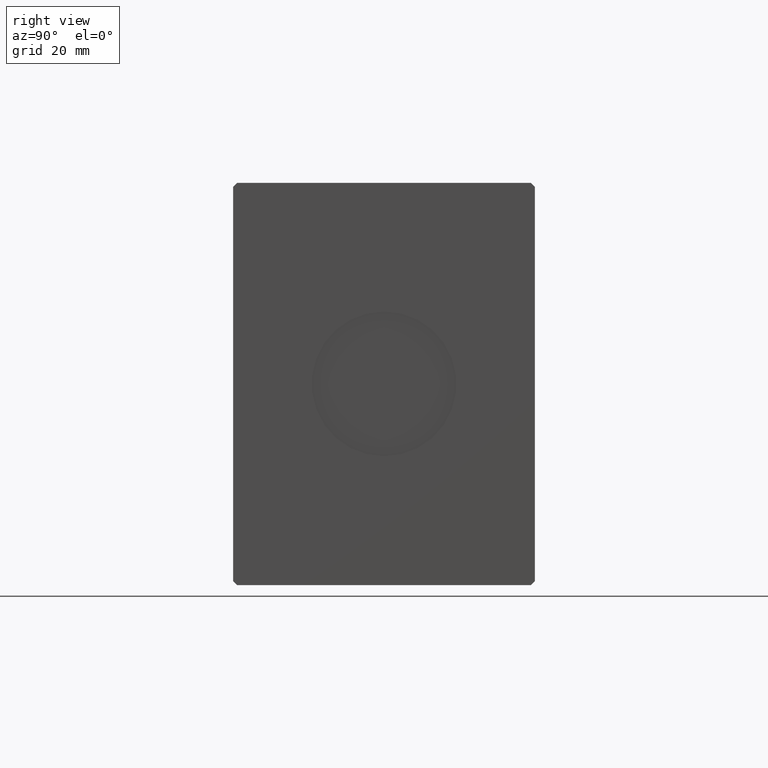
[diagram: clean part render]
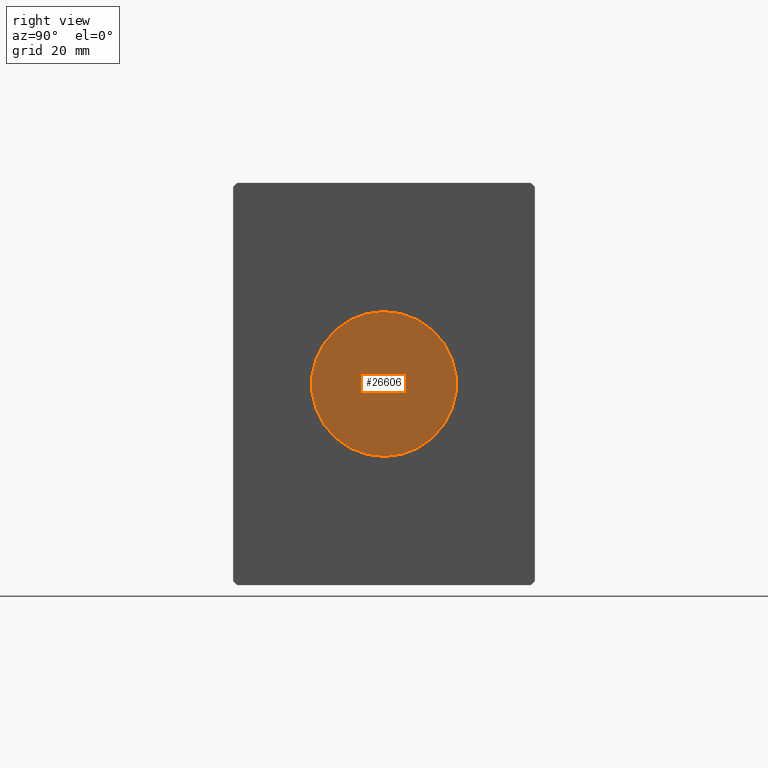
[diagram: same view with one face highlighted and labeled with its STEP entity id]
A machine part, right view. The second image highlights one B-rep face of the part: STEP entity #26606.
In plain terms, the highlighted planar face has unit normal (1, 0, 0).
Its self-contained STEP definition (entity closure, byte-faithful):
#391 = DIRECTION ( 'NONE',  ( 0.000000000000000000, 0.000000000000000000, -1.000000000000000000 ) ) ;
#1099 = VERTEX_POINT ( 'NONE', #18920 ) ;
#2688 = PLANE ( 'NONE',  #15035 ) ;
#3302 = DIRECTION ( 'NONE',  ( 1.000000000000000000, 0.000000000000000000, 0.000000000000000000 ) ) ;
#4135 = CARTESIAN_POINT ( 'NONE',  ( 131.8000000000000114, 0.000000000000000000, -18.00000000000000000 ) ) ;
#4978 = AXIS2_PLACEMENT_3D ( 'NONE', #6290, #28254, #37168 ) ;
#6290 = CARTESIAN_POINT ( 'NONE',  ( 131.8000000000000114, 0.000000000000000000, 0.000000000000000000 ) ) ;
#7257 = ORIENTED_EDGE ( 'NONE', *, *, #22754, .T. ) ;
#8937 = DIRECTION ( 'NONE',  ( 0.000000000000000000, 0.000000000000000000, -1.000000000000000000 ) ) ;
#9557 = CARTESIAN_POINT ( 'NONE',  ( 131.8000000000000114, 0.000000000000000000, 0.000000000000000000 ) ) ;
#10351 = DIRECTION ( 'NONE',  ( 1.000000000000000000, 0.000000000000000000, 0.000000000000000000 ) ) ;
#10835 = AXIS2_PLACEMENT_3D ( 'NONE', #38719, #10351, #391 ) ;
#12039 = FACE_OUTER_BOUND ( 'NONE', #27376, .T. ) ;
#13189 = EDGE_CURVE ( 'NONE', #38985, #1099, #28717, .T. ) ;
#15035 = AXIS2_PLACEMENT_3D ( 'NONE', #9557, #3302, #8937 ) ;
#18920 = CARTESIAN_POINT ( 'NONE',  ( 131.8000000000000114, 2.204364238465235428E-15, 18.00000000000000000 ) ) ;
#22754 = EDGE_CURVE ( 'NONE', #1099, #38985, #40743, .T. ) ;
#26606 = ADVANCED_FACE ( 'NONE', ( #12039 ), #2688, .T. ) ;
#27376 = EDGE_LOOP ( 'NONE', ( #40799, #7257 ) ) ;
#28254 = DIRECTION ( 'NONE',  ( 1.000000000000000000, 0.000000000000000000, 0.000000000000000000 ) ) ;
#28717 = CIRCLE ( 'NONE', #10835, 18.00000000000000000 ) ;
#37168 = DIRECTION ( 'NONE',  ( 0.000000000000000000, 0.000000000000000000, -1.000000000000000000 ) ) ;
#38719 = CARTESIAN_POINT ( 'NONE',  ( 131.8000000000000114, 0.000000000000000000, 0.000000000000000000 ) ) ;
#38985 = VERTEX_POINT ( 'NONE', #4135 ) ;
#40743 = CIRCLE ( 'NONE', #4978, 18.00000000000000000 ) ;
#40799 = ORIENTED_EDGE ( 'NONE', *, *, #13189, .T. ) ;